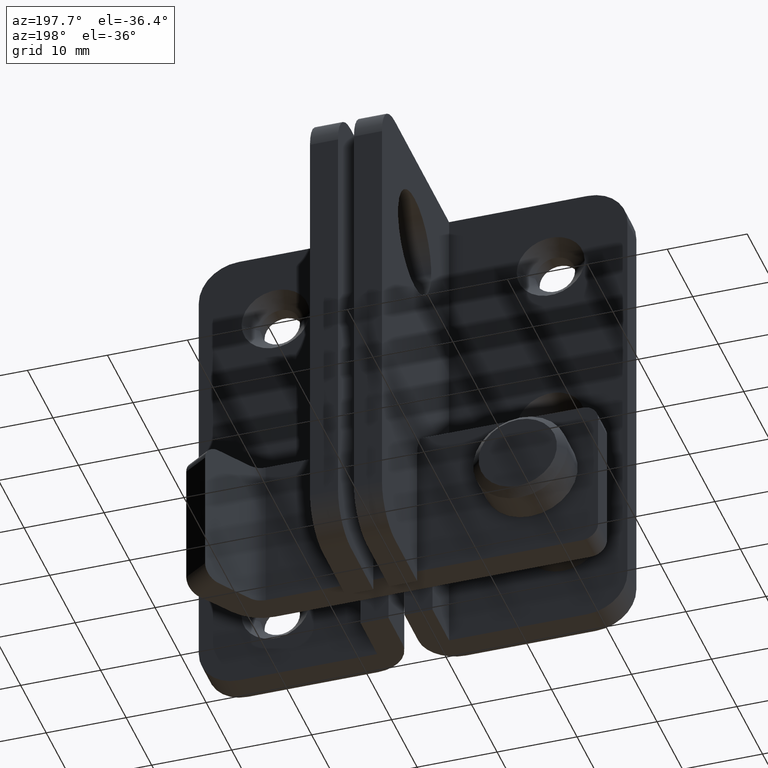
[diagram: clean part render]
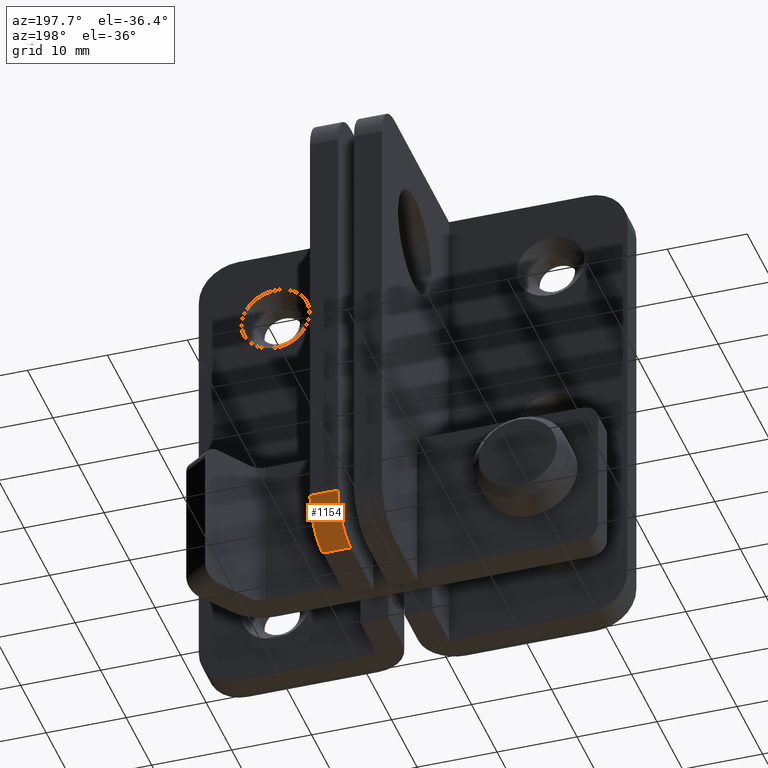
[diagram: same view with one face highlighted and labeled with its STEP entity id]
A machine part, auxiliary view. The second image highlights one B-rep face of the part: STEP entity #1154.
In plain terms, the highlighted cylindrical surface (partial cylindrical patch) has radius 5 mm, axis along (1, 0, 0).
Its self-contained STEP definition (entity closure, byte-faithful):
#155=FACE_OUTER_BOUND('',#249,.T.);
#249=EDGE_LOOP('',(#963,#964,#965,#966));
#325=LINE('',#1859,#415);
#337=LINE('',#1910,#427);
#415=VECTOR('',#1505,3.50000000000001);
#427=VECTOR('',#1559,3.50000000000001);
#492=CIRCLE('',#1253,5.);
#502=CIRCLE('',#1271,5.);
#577=VERTEX_POINT('',#1856);
#578=VERTEX_POINT('',#1858);
#582=VERTEX_POINT('',#1868);
#596=VERTEX_POINT('',#1908);
#706=EDGE_CURVE('',#578,#577,#325,.T.);
#712=EDGE_CURVE('',#577,#582,#492,.T.);
#729=EDGE_CURVE('',#596,#578,#502,.T.);
#730=EDGE_CURVE('',#582,#596,#337,.T.);
#963=ORIENTED_EDGE('',*,*,#729,.T.);
#964=ORIENTED_EDGE('',*,*,#706,.T.);
#965=ORIENTED_EDGE('',*,*,#712,.T.);
#966=ORIENTED_EDGE('',*,*,#730,.T.);
#1099=CYLINDRICAL_SURFACE('',#1270,5.);
#1154=ADVANCED_FACE('',(#155),#1099,.T.);
#1253=AXIS2_PLACEMENT_3D('',#1870,#1514,#1515);
#1270=AXIS2_PLACEMENT_3D('',#1907,#1555,#1556);
#1271=AXIS2_PLACEMENT_3D('',#1909,#1557,#1558);
#1505=DIRECTION('',(-1.,0.,0.));
#1514=DIRECTION('center_axis',(1.,7.9602041944578E-16,0.));
#1515=DIRECTION('ref_axis',(0.,0.707106781186547,-0.707106781186547));
#1555=DIRECTION('center_axis',(1.,0.,0.));
#1556=DIRECTION('ref_axis',(0.,0.707106781186547,-0.707106781186547));
#1557=DIRECTION('center_axis',(-1.,-4.64351835394552E-16,0.));
#1558=DIRECTION('ref_axis',(0.,0.707106781186547,-0.707106781186547));
#1559=DIRECTION('',(1.,0.,0.));
#1856=CARTESIAN_POINT('',(-1.97413064022553E-14,24.8,-61.9));
#1858=CARTESIAN_POINT('',(3.49999999999999,24.8,-61.9));
#1859=CARTESIAN_POINT('',(3.81290467625898,24.8,-61.9));
#1868=CARTESIAN_POINT('',(-2.37214084994842E-14,29.8,-56.9));
#1870=CARTESIAN_POINT('Origin',(0.,24.8,-56.9));
#1907=CARTESIAN_POINT('Origin',(3.81290467625898,24.8,-56.9));
#1908=CARTESIAN_POINT('',(3.49999999999998,29.8,-56.9));
#1909=CARTESIAN_POINT('Origin',(3.49999999999998,24.8,-56.9));
#1910=CARTESIAN_POINT('',(3.81290467625898,29.8,-56.9));